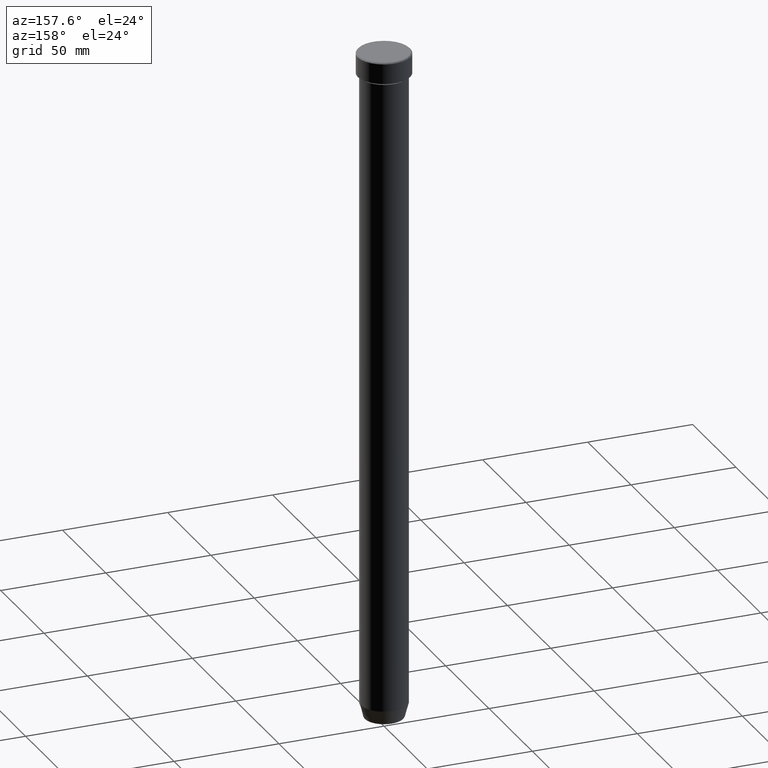
[diagram: clean part render]
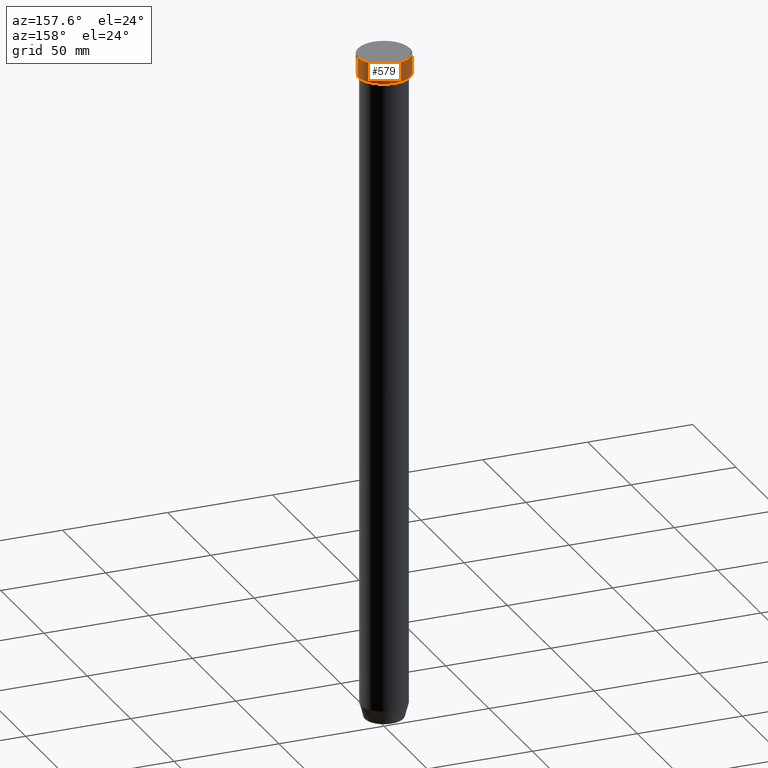
[diagram: same view with one face highlighted and labeled with its STEP entity id]
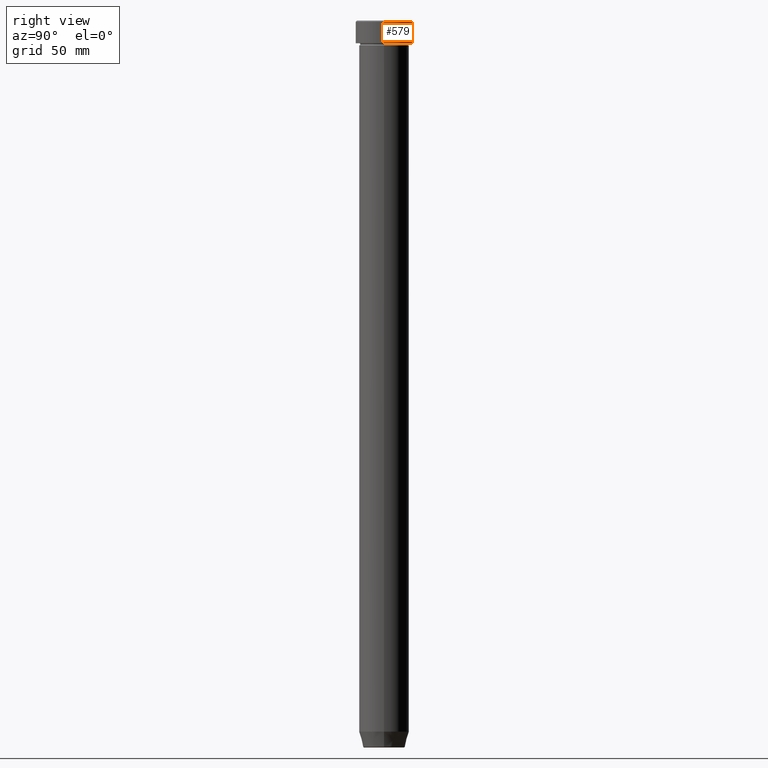
[diagram: same view with one face highlighted and labeled with its STEP entity id]
A machine part, auxiliary view. The second image highlights one B-rep face of the part: STEP entity #579.
A second angle (right view) of the same face is appended — the face is thin or edge-on in the first view.
In plain terms, the highlighted cylindrical surface (edge-blend (fillet) strip) has radius 12.5 mm, axis along (-0, -0, 1).
Its self-contained STEP definition (entity closure, byte-faithful):
#34 = CYLINDRICAL_SURFACE ( 'NONE', #308, 12.50000000000000000 ) ;
#56 = AXIS2_PLACEMENT_3D ( 'NONE', #205, #497, #73 ) ;
#62 = ORIENTED_EDGE ( 'NONE', *, *, #590, .F. ) ;
#73 = DIRECTION ( 'NONE',  ( 1.000000000000000000, 0.000000000000000000, 0.000000000000000000 ) ) ;
#85 = EDGE_CURVE ( 'NONE', #289, #413, #293, .T. ) ;
#108 = CARTESIAN_POINT ( 'NONE',  ( -12.50000000000000000, 1.530808498934191521E-15, -10.00000000000000000 ) ) ;
#192 = VECTOR ( 'NONE', #587, 1000.000000000000000 ) ;
#205 = CARTESIAN_POINT ( 'NONE',  ( 0.000000000000000000, 0.000000000000000000, -0.4999999999999988343 ) ) ;
#216 = FACE_OUTER_BOUND ( 'NONE', #383, .T. ) ;
#223 = CARTESIAN_POINT ( 'NONE',  ( 12.50000000000000000, 0.000000000000000000, -10.00000000000000000 ) ) ;
#253 = LINE ( 'NONE', #257, #192 ) ;
#257 = CARTESIAN_POINT ( 'NONE',  ( 12.50000000000000000, 0.000000000000000000, 0.000000000000000000 ) ) ;
#282 = AXIS2_PLACEMENT_3D ( 'NONE', #461, #412, #452 ) ;
#288 = CARTESIAN_POINT ( 'NONE',  ( -12.50000000000000000, 1.530808498934191521E-15, -0.4999999999999988343 ) ) ;
#289 = VERTEX_POINT ( 'NONE', #223 ) ;
#291 = VERTEX_POINT ( 'NONE', #504 ) ;
#292 = CIRCLE ( 'NONE', #56, 12.50000000000000000 ) ;
#293 = CIRCLE ( 'NONE', #282, 12.50000000000000000 ) ;
#308 = AXIS2_PLACEMENT_3D ( 'NONE', #544, #494, #483 ) ;
#327 = DIRECTION ( 'NONE',  ( -0.000000000000000000, -0.000000000000000000, 1.000000000000000000 ) ) ;
#383 = EDGE_LOOP ( 'NONE', ( #588, #534, #528, #62 ) ) ;
#393 = VERTEX_POINT ( 'NONE', #288 ) ;
#412 = DIRECTION ( 'NONE',  ( -0.000000000000000000, -0.000000000000000000, 1.000000000000000000 ) ) ;
#413 = VERTEX_POINT ( 'NONE', #108 ) ;
#447 = EDGE_CURVE ( 'NONE', #413, #393, #575, .T. ) ;
#452 = DIRECTION ( 'NONE',  ( 1.000000000000000000, 0.000000000000000000, 0.000000000000000000 ) ) ;
#461 = CARTESIAN_POINT ( 'NONE',  ( 0.000000000000000000, 0.000000000000000000, -10.00000000000000000 ) ) ;
#483 = DIRECTION ( 'NONE',  ( 1.000000000000000000, 0.000000000000000000, 0.000000000000000000 ) ) ;
#494 = DIRECTION ( 'NONE',  ( -0.000000000000000000, -0.000000000000000000, 1.000000000000000000 ) ) ;
#497 = DIRECTION ( 'NONE',  ( 0.000000000000000000, 0.000000000000000000, -1.000000000000000000 ) ) ;
#503 = VECTOR ( 'NONE', #327, 1000.000000000000000 ) ;
#504 = CARTESIAN_POINT ( 'NONE',  ( 12.50000000000000000, 0.000000000000000000, -0.4999999999999988343 ) ) ;
#528 = ORIENTED_EDGE ( 'NONE', *, *, #571, .T. ) ;
#534 = ORIENTED_EDGE ( 'NONE', *, *, #447, .T. ) ;
#544 = CARTESIAN_POINT ( 'NONE',  ( 0.000000000000000000, 0.000000000000000000, 0.000000000000000000 ) ) ;
#571 = EDGE_CURVE ( 'NONE', #393, #291, #292, .T. ) ;
#575 = LINE ( 'NONE', #578, #503 ) ;
#578 = CARTESIAN_POINT ( 'NONE',  ( -12.50000000000000000, 1.530808498934191521E-15, 0.000000000000000000 ) ) ;
#579 = ADVANCED_FACE ( 'NONE', ( #216 ), #34, .T. ) ;
#587 = DIRECTION ( 'NONE',  ( -0.000000000000000000, -0.000000000000000000, 1.000000000000000000 ) ) ;
#588 = ORIENTED_EDGE ( 'NONE', *, *, #85, .T. ) ;
#590 = EDGE_CURVE ( 'NONE', #289, #291, #253, .T. ) ;